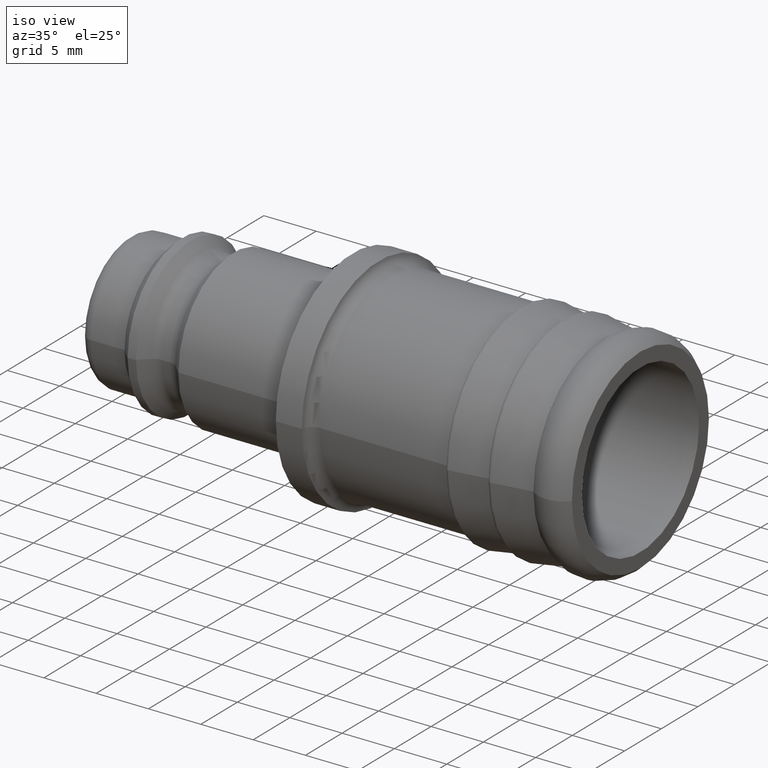
[diagram: clean part render]
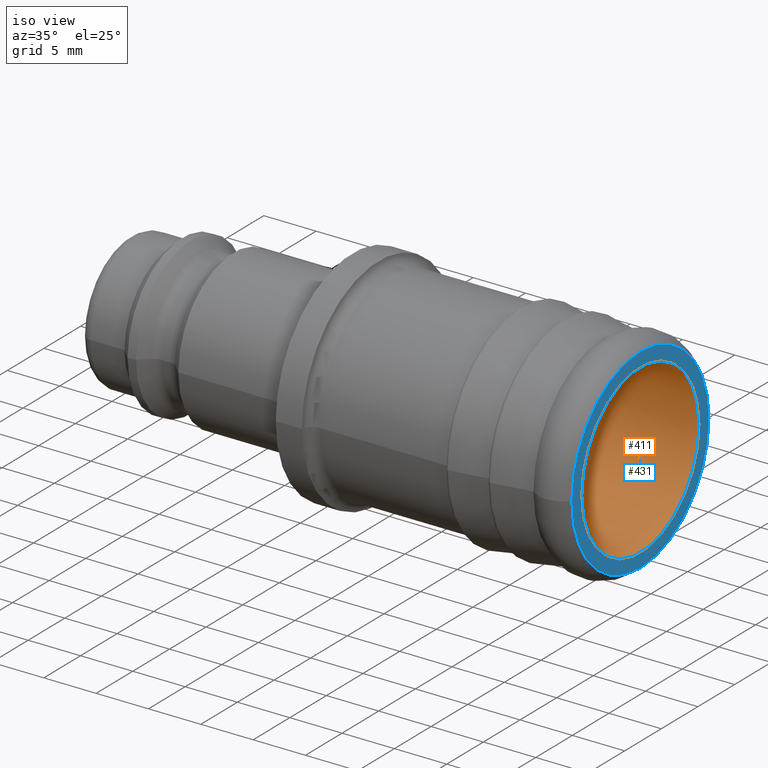
[diagram: same view with the hole feature highlighted: cylindrical wall and planar end face, labeled with their STEP entity ids]
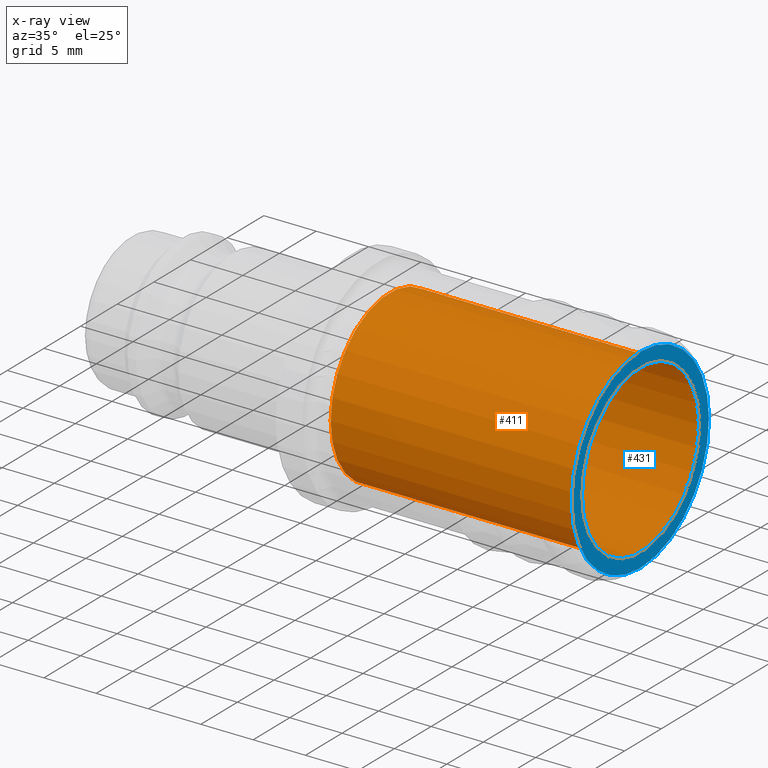
[diagram: x-ray of the same camera — body ghosted, the hole faces saturated]
A machine part, iso view. The highlighted faces form one hole feature of diameter 16 mm: the cylindrical wall (entity #411, orange) and its adjacent planar end face (entity #431, blue) — they share a circular edge in the B-rep.
The next image is the same camera in x-ray (body ghosted, the hole faces saturated) — the bore reads through the body.
Wall:
#377=CARTESIAN_POINT('',(25.0,-8.000000000000004,0.0));
#378=VERTEX_POINT('',#377);
#379=CARTESIAN_POINT('',(25.0,0.0,0.0));
#380=DIRECTION('',(-1.0,0.0,0.0));
#381=DIRECTION('',(0.0,-1.0,0.0));
#382=AXIS2_PLACEMENT_3D('',#379,#380,#381);
#383=CIRCLE('',#382,8.000000000000004);
#384=EDGE_CURVE('',#378,#378,#383,.T.);
#392=CARTESIAN_POINT('',(37.000000000000007,0.0,0.0));
#393=DIRECTION('',(-1.0,0.0,0.0));
#394=DIRECTION('',(0.0,-1.0,0.0));
#395=AXIS2_PLACEMENT_3D('',#392,#393,#394);
#396=CYLINDRICAL_SURFACE('',#395,7.999999999999997);
#397=CARTESIAN_POINT('',(49.000000000000014,-7.999999999999991,0.0));
#398=VERTEX_POINT('',#397);
#399=CARTESIAN_POINT('',(49.000000000000014,0.0,0.0));
#400=DIRECTION('',(-1.0,0.0,0.0));
#401=DIRECTION('',(0.0,-1.0,0.0));
#402=AXIS2_PLACEMENT_3D('',#399,#400,#401);
#403=CIRCLE('',#402,7.999999999999991);
#404=EDGE_CURVE('',#398,#398,#403,.T.);
#405=ORIENTED_EDGE('',*,*,#404,.F.);
#406=EDGE_LOOP('',(#405));
#407=FACE_OUTER_BOUND('',#406,.T.);
#408=ORIENTED_EDGE('',*,*,#384,.T.);
#409=EDGE_LOOP('',(#408));
#410=FACE_BOUND('',#409,.T.);
#411=ADVANCED_FACE('',(#407,#410),#396,.F.);
End face:
#397=CARTESIAN_POINT('',(49.000000000000014,-7.999999999999991,0.0));
#398=VERTEX_POINT('',#397);
#399=CARTESIAN_POINT('',(49.000000000000014,0.0,0.0));
#400=DIRECTION('',(-1.0,0.0,0.0));
#401=DIRECTION('',(0.0,-1.0,0.0));
#402=AXIS2_PLACEMENT_3D('',#399,#400,#401);
#403=CIRCLE('',#402,7.999999999999991);
#404=EDGE_CURVE('',#398,#398,#403,.T.);
#412=CARTESIAN_POINT('',(49.0,-8.676688237259118,0.0));
#413=DIRECTION('',(1.0,0.0,0.0));
#414=DIRECTION('',(0.0,0.0,-1.0));
#415=AXIS2_PLACEMENT_3D('',#412,#413,#414);
#416=PLANE('',#415);
#417=CARTESIAN_POINT('',(49.0,-9.353376474518244,0.0));
#418=VERTEX_POINT('',#417);
#419=CARTESIAN_POINT('',(49.0,0.0,0.0));
#420=DIRECTION('',(-1.0,0.0,0.0));
#421=DIRECTION('',(0.0,-1.0,0.0));
#422=AXIS2_PLACEMENT_3D('',#419,#420,#421);
#423=CIRCLE('',#422,9.353376474518244);
#424=EDGE_CURVE('',#418,#418,#423,.T.);
#425=ORIENTED_EDGE('',*,*,#424,.F.);
#426=EDGE_LOOP('',(#425));
#427=FACE_OUTER_BOUND('',#426,.T.);
#428=ORIENTED_EDGE('',*,*,#404,.T.);
#429=EDGE_LOOP('',(#428));
#430=FACE_BOUND('',#429,.T.);
#431=ADVANCED_FACE('',(#427,#430),#416,.T.);